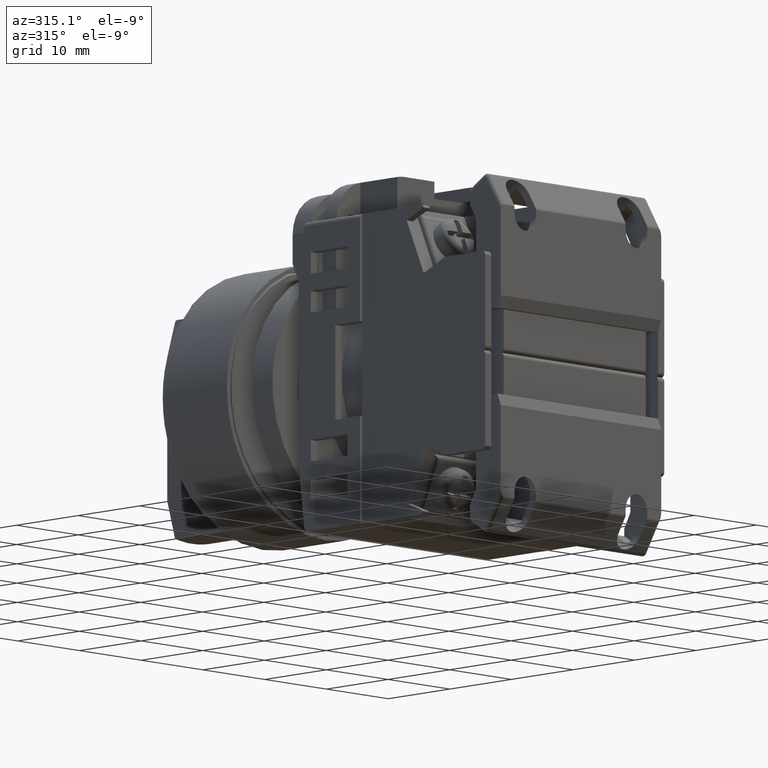
[diagram: clean part render]
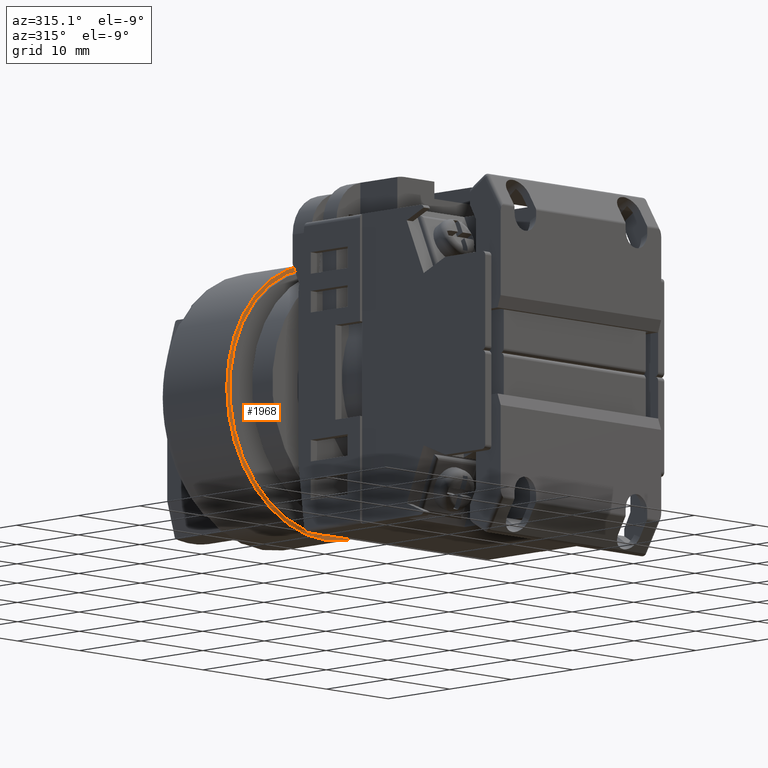
[diagram: same view with one face highlighted and labeled with its STEP entity id]
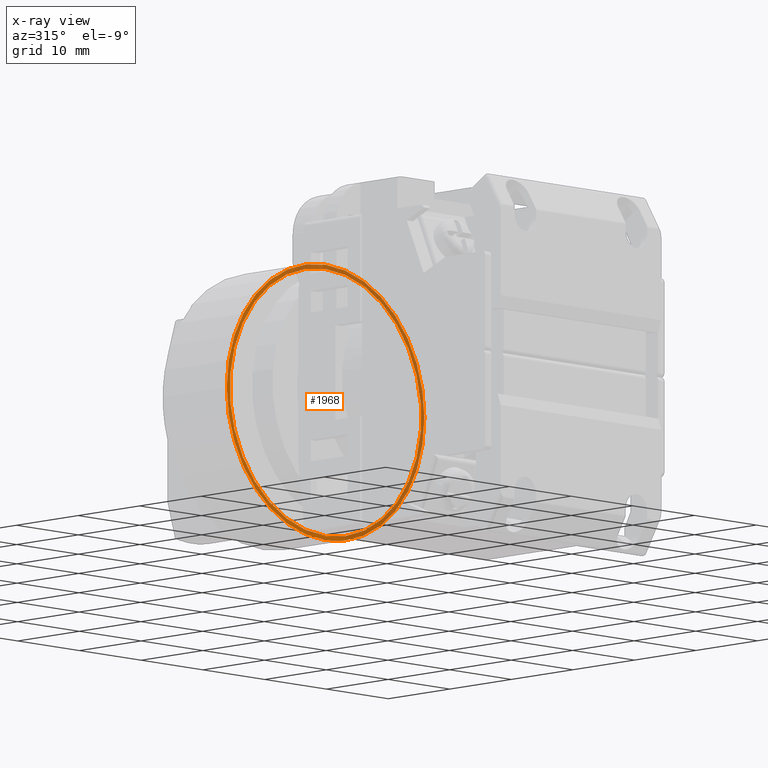
[diagram: x-ray of the same camera — body ghosted, the highlighted face saturated]
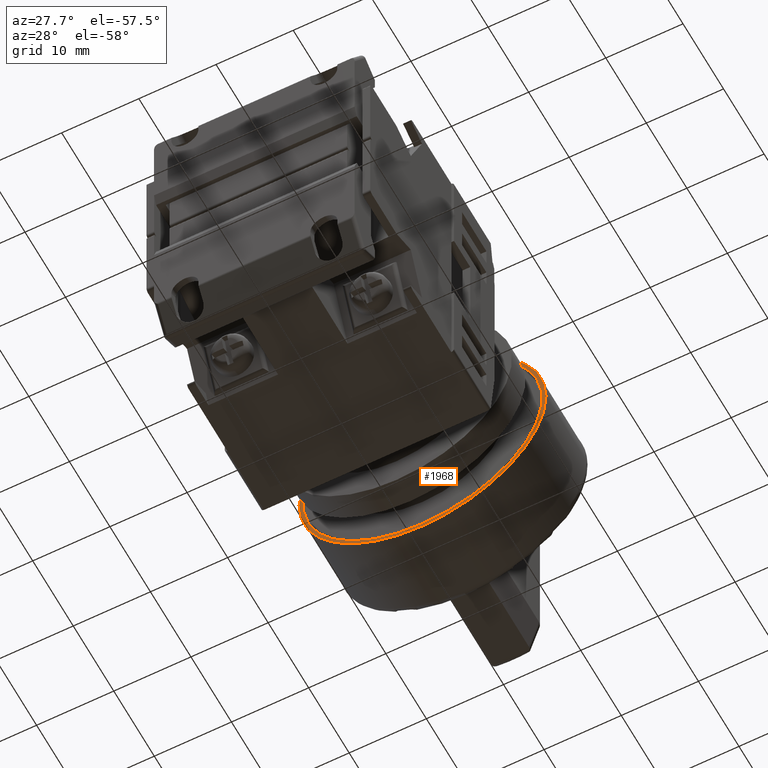
[diagram: same view with one face highlighted and labeled with its STEP entity id]
A machine part, auxiliary view. The second image highlights one B-rep face of the part: STEP entity #1968.
The next image is the same camera in x-ray: the body ghosted, the highlighted face saturated — about 53% of this face is hidden behind the body in this view.
A second angle (auxiliary view) of the same face is appended — the face is thin or edge-on in the first view.
In plain terms, the highlighted planar face has unit normal (0, -1, 0).
Its self-contained STEP definition (entity closure, byte-faithful):
#325 = CARTESIAN_POINT ( 'NONE',  ( 0.0000000000000000000, 0.0000000000000000000, 0.0000000000000000000 ) ) ;
#739 = AXIS2_PLACEMENT_3D ( 'NONE', #325, #9691, #1664 ) ;
#1377 = PLANE ( 'NONE',  #7634 ) ;
#1664 = DIRECTION ( 'NONE',  ( 0.0000000000000000000, 0.0000000000000000000, -1.000000000000000000 ) ) ;
#1782 = EDGE_CURVE ( 'NONE', #15734, #3596, #4141, .T. ) ;
#1968 = ADVANCED_FACE ( 'NONE', ( #4330, #7929 ), #1377, .T. ) ;
#2471 = CARTESIAN_POINT ( 'NONE',  ( 0.0000000000000000000, 0.0000000000000000000, -15.50000000000000000 ) ) ;
#2728 = EDGE_CURVE ( 'NONE', #8897, #4900, #15406, .T. ) ;
#2810 = CARTESIAN_POINT ( 'NONE',  ( 0.0000000000000000000, 0.0000000000000000000, 0.0000000000000000000 ) ) ;
#3562 = CARTESIAN_POINT ( 'NONE',  ( 0.0000000000000000000, 0.0000000000000000000, 0.0000000000000000000 ) ) ;
#3596 = VERTEX_POINT ( 'NONE', #2471 ) ;
#4097 = DIRECTION ( 'NONE',  ( 0.0000000000000000000, -0.0000000000000000000, -1.000000000000000000 ) ) ;
#4141 = CIRCLE ( 'NONE', #7041, 15.50000000000000000 ) ;
#4164 = DIRECTION ( 'NONE',  ( 0.0000000000000000000, 0.0000000000000000000, -1.000000000000000000 ) ) ;
#4330 = FACE_BOUND ( 'NONE', #13288, .T. ) ;
#4585 = AXIS2_PLACEMENT_3D ( 'NONE', #2810, #12174, #4164 ) ;
#4900 = VERTEX_POINT ( 'NONE', #17232 ) ;
#4903 = DIRECTION ( 'NONE',  ( 0.0000000000000000000, 0.0000000000000000000, -1.000000000000000000 ) ) ;
#6002 = CARTESIAN_POINT ( 'NONE',  ( 0.0000000000000000000, 0.0000000000000000000, -16.00000000000000000 ) ) ;
#7041 = AXIS2_PLACEMENT_3D ( 'NONE', #3562, #12913, #4903 ) ;
#7114 = CARTESIAN_POINT ( 'NONE',  ( 0.0000000000000000000, 0.0000000000000000000, 0.0000000000000000000 ) ) ;
#7250 = ORIENTED_EDGE ( 'NONE', *, *, #8282, .F. ) ;
#7634 = AXIS2_PLACEMENT_3D ( 'NONE', #16074, #12093, #4097 ) ;
#7929 = FACE_OUTER_BOUND ( 'NONE', #13050, .T. ) ;
#8282 = EDGE_CURVE ( 'NONE', #3596, #15734, #15438, .T. ) ;
#8468 = DIRECTION ( 'NONE',  ( 0.0000000000000000000, 0.0000000000000000000, -1.000000000000000000 ) ) ;
#8897 = VERTEX_POINT ( 'NONE', #6002 ) ;
#9463 = ORIENTED_EDGE ( 'NONE', *, *, #2728, .T. ) ;
#9691 = DIRECTION ( 'NONE',  ( 0.0000000000000000000, -1.000000000000000000, 0.0000000000000000000 ) ) ;
#12093 = DIRECTION ( 'NONE',  ( 0.0000000000000000000, -1.000000000000000000, 0.0000000000000000000 ) ) ;
#12174 = DIRECTION ( 'NONE',  ( 0.0000000000000000000, -1.000000000000000000, 0.0000000000000000000 ) ) ;
#12913 = DIRECTION ( 'NONE',  ( 0.0000000000000000000, -1.000000000000000000, 0.0000000000000000000 ) ) ;
#13050 = EDGE_LOOP ( 'NONE', ( #9463, #14920 ) ) ;
#13206 = CIRCLE ( 'NONE', #4585, 16.00000000000000000 ) ;
#13288 = EDGE_LOOP ( 'NONE', ( #7250, #14793 ) ) ;
#14793 = ORIENTED_EDGE ( 'NONE', *, *, #1782, .F. ) ;
#14920 = ORIENTED_EDGE ( 'NONE', *, *, #15878, .T. ) ;
#15406 = CIRCLE ( 'NONE', #739, 16.00000000000000000 ) ;
#15438 = CIRCLE ( 'NONE', #16009, 15.50000000000000000 ) ;
#15734 = VERTEX_POINT ( 'NONE', #17092 ) ;
#15878 = EDGE_CURVE ( 'NONE', #4900, #8897, #13206, .T. ) ;
#16009 = AXIS2_PLACEMENT_3D ( 'NONE', #7114, #16475, #8468 ) ;
#16074 = CARTESIAN_POINT ( 'NONE',  ( 0.0000000000000000000, 0.0000000000000000000, 0.0000000000000000000 ) ) ;
#16475 = DIRECTION ( 'NONE',  ( 0.0000000000000000000, -1.000000000000000000, 0.0000000000000000000 ) ) ;
#17092 = CARTESIAN_POINT ( 'NONE',  ( 1.898202538678397600E-015, 0.0000000000000000000, 15.50000000000000000 ) ) ;
#17232 = CARTESIAN_POINT ( 'NONE',  ( 1.959434878635765100E-015, 0.0000000000000000000, 16.00000000000000000 ) ) ;